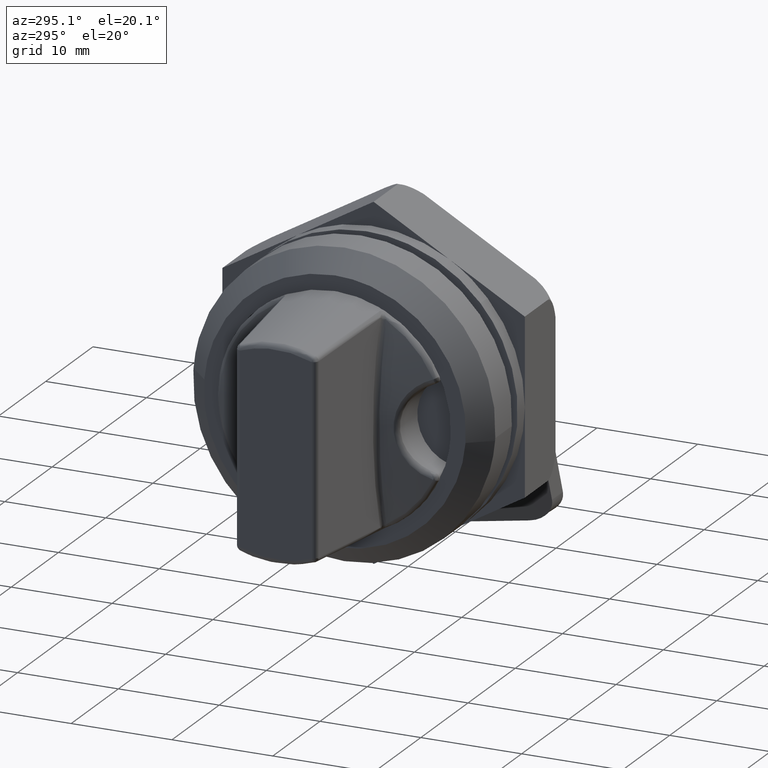
[diagram: clean part render]
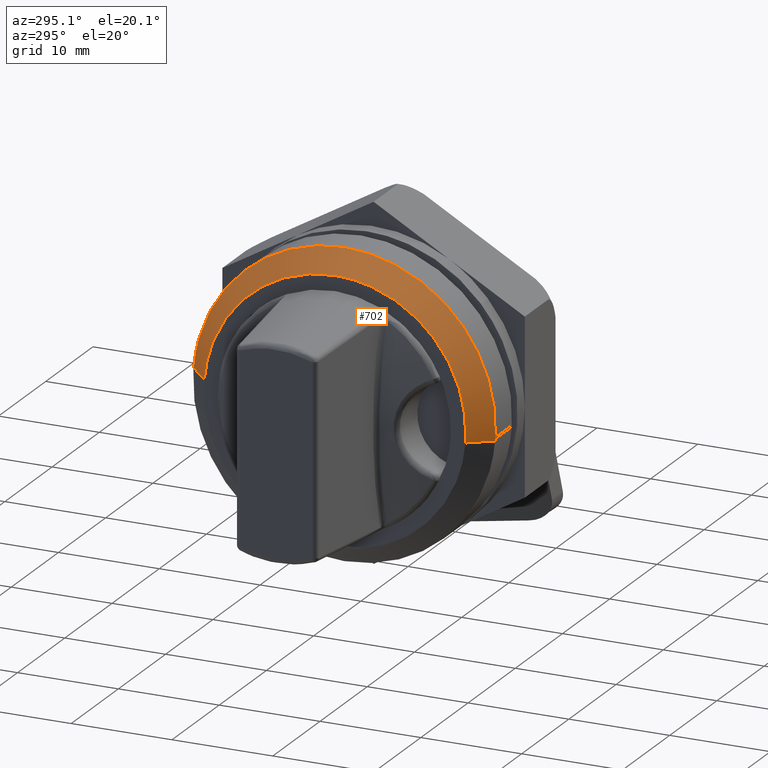
[diagram: same view with one face highlighted and labeled with its STEP entity id]
A machine part, auxiliary view. The second image highlights one B-rep face of the part: STEP entity #702.
In plain terms, the highlighted face is a freeform B-spline surface patch.
Its self-contained STEP definition (entity closure, byte-faithful):
#549=CARTESIAN_POINT('',(-3.499999999996935,14.953760005995850,1.176886435947781));
#550=VERTEX_POINT('',#549);
#564=CARTESIAN_POINT('',(-3.500000000000000,0.0,15.0));
#565=VERTEX_POINT('',#564);
#566=CARTESIAN_POINT('',(-3.500000000000000,0.0,15.0));
#567=CARTESIAN_POINT('',(-3.499999999998466,13.865857374845916,15.000000000000076));
#568=CARTESIAN_POINT('',(-3.499999999996935,14.953760005995850,1.176886435947781));
#576=(BOUNDED_CURVE()B_SPLINE_CURVE(2,(#566,#567,#568),.UNSPECIFIED.,.F.,.U.)B_SPLINE_CURVE_WITH_KNOTS((3,3),(0.0,0.236331300632424),.UNSPECIFIED.)CURVE()GEOMETRIC_REPRESENTATION_ITEM()RATIONAL_B_SPLINE_CURVE((1.0,0.723120658605599,0.969723356171099))REPRESENTATION_ITEM(''));
#577=EDGE_CURVE('',#565,#550,#576,.T.);
#579=CARTESIAN_POINT('',(-3.500000000000000,-14.972022608173891,-0.915717762317002));
#580=VERTEX_POINT('',#579);
#581=CARTESIAN_POINT('',(-3.500000000000000,-14.972022608173891,-0.915717762317002));
#582=CARTESIAN_POINT('',(-3.500000000000000,-14.999999999996483,-0.458286269642817));
#583=CARTESIAN_POINT('',(-3.500000000000000,-14.999999999996540,2.135226E-013));
#584=CARTESIAN_POINT('',(-3.500000000000000,-14.999999999998328,15.000000000000098));
#585=CARTESIAN_POINT('',(-3.500000000000000,0.0,15.0));
#593=(BOUNDED_CURVE()B_SPLINE_CURVE(2,(#581,#582,#583,#584,#585),.UNSPECIFIED.,.F.,.U.)B_SPLINE_CURVE_WITH_KNOTS((3,2,3),(0.739333081299387,0.750000000000000,1.0),.UNSPECIFIED.)CURVE()GEOMETRIC_REPRESENTATION_ITEM()RATIONAL_B_SPLINE_CURVE((0.976072296836046,0.987502927387824,1.0,0.707106781186547,1.0))REPRESENTATION_ITEM(''));
#594=EDGE_CURVE('',#580,#565,#593,.T.);
#621=CARTESIAN_POINT('',(-5.550000000000001,12.910079471844000,1.016045289675600));
#622=CARTESIAN_POINT('',(-5.550000000000002,11.894034182168403,13.926124761519603));
#623=CARTESIAN_POINT('',(-5.550000000000001,-1.016045289675600,12.910079471844000));
#624=CARTESIAN_POINT('',(-5.550000000000002,-13.926124761519603,11.894034182168403));
#625=CARTESIAN_POINT('',(-5.550000000000001,-12.910079471844000,-1.016045289675600));
#626=CARTESIAN_POINT('',(-3.448750000000000,15.004852019350739,1.180907464573735));
#627=CARTESIAN_POINT('',(-3.448750000000000,13.823944554777002,16.185759483924471));
#628=CARTESIAN_POINT('',(-3.448750000000000,-1.180907464573735,15.004852019350739));
#629=CARTESIAN_POINT('',(-3.448750000000000,-16.185759483924471,13.823944554777002));
#630=CARTESIAN_POINT('',(-3.448750000000000,-15.004852019350739,-1.180907464573735));
#638=(BOUNDED_SURFACE()B_SPLINE_SURFACE(2,1,((#621,#626),(#622,#627),(#623,#628),(#624,#629),(#625,#630)),.UNSPECIFIED.,.F.,.F.,.U.)B_SPLINE_SURFACE_WITH_KNOTS((3,2,3),(2,2),(0.0,24.937727522672180,49.875455045344367),(0.0,2.971616247936467),.UNSPECIFIED.)GEOMETRIC_REPRESENTATION_ITEM()RATIONAL_B_SPLINE_SURFACE(((1.0,1.0),(0.707106781186548,0.707106781186548),(1.0,1.0),(0.707106781186548,0.707106781186548),(1.0,1.0)))REPRESENTATION_ITEM('')SURFACE());
#639=ORIENTED_EDGE('',*,*,#577,.T.);
#640=CARTESIAN_POINT('',(-5.499999999992678,12.959925338533660,1.019968244518019));
#641=VERTEX_POINT('',#640);
#642=CARTESIAN_POINT('',(-5.499999999992678,12.959925338533660,1.019968244518019));
#643=CARTESIAN_POINT('',(-3.499999999996935,14.953760005995850,1.176886435947781));
#644=QUASI_UNIFORM_CURVE('',1,(#642,#643),.UNSPECIFIED.,.F.,.U.);
#645=EDGE_CURVE('',#641,#550,#644,.T.);
#646=ORIENTED_EDGE('',*,*,#645,.F.);
#647=CARTESIAN_POINT('',(-5.500000000000000,0.0,13.000000000000121));
#648=VERTEX_POINT('',#647);
#649=CARTESIAN_POINT('',(-5.500000000000000,0.0,13.000000000000121));
#650=CARTESIAN_POINT('',(-5.499999999996340,12.017076391508841,13.000000000000407));
#651=CARTESIAN_POINT('',(-5.499999999992678,12.959925338533656,1.019968244518019));
#659=(BOUNDED_CURVE()B_SPLINE_CURVE(2,(#649,#650,#651),.UNSPECIFIED.,.F.,.U.)B_SPLINE_CURVE_WITH_KNOTS((3,3),(0.0,0.236331300632033),.UNSPECIFIED.)CURVE()GEOMETRIC_REPRESENTATION_ITEM()RATIONAL_B_SPLINE_CURVE((1.0,0.723120658606056,0.969723356170285))REPRESENTATION_ITEM(''));
#660=EDGE_CURVE('',#648,#641,#659,.T.);
#661=ORIENTED_EDGE('',*,*,#660,.F.);
#662=CARTESIAN_POINT('',(-5.499999999992679,-12.959925338533660,-1.019968244518019));
#663=VERTEX_POINT('',#662);
#664=CARTESIAN_POINT('',(-5.499999999992680,-12.959925338533658,-1.019968244518019));
#665=CARTESIAN_POINT('',(-5.499999999992811,-13.000000000007228,-0.510771391128125));
#666=CARTESIAN_POINT('',(-5.499999999992956,-13.000000000007081,-5.460901E-013));
#667=CARTESIAN_POINT('',(-5.499999999996616,-13.000000000003462,12.999999999999858));
#668=CARTESIAN_POINT('',(-5.500000000000000,0.0,13.000000000000121));
#676=(BOUNDED_CURVE()B_SPLINE_CURVE(2,(#664,#665,#666,#667,#668),.UNSPECIFIED.,.F.,.U.)B_SPLINE_CURVE_WITH_KNOTS((3,2,3),(0.736331300632033,0.750000000000000,1.0),.UNSPECIFIED.)CURVE()GEOMETRIC_REPRESENTATION_ITEM()RATIONAL_B_SPLINE_CURVE((0.969723356170284,0.983986122580491,1.0,0.707106781186548,1.0))REPRESENTATION_ITEM(''));
#677=EDGE_CURVE('',#663,#648,#676,.T.);
#678=ORIENTED_EDGE('',*,*,#677,.F.);
#679=CARTESIAN_POINT('',(-3.499999999996935,-14.953760005995850,-1.176886435947782));
#680=VERTEX_POINT('',#679);
#681=CARTESIAN_POINT('',(-5.499999999992679,-12.959925338533660,-1.019968244518019));
#682=CARTESIAN_POINT('',(-3.499999999996935,-14.953760005995850,-1.176886435947782));
#683=QUASI_UNIFORM_CURVE('',1,(#681,#682),.UNSPECIFIED.,.F.,.U.);
#684=EDGE_CURVE('',#663,#680,#683,.T.);
#685=ORIENTED_EDGE('',*,*,#684,.T.);
#686=CARTESIAN_POINT('',(-3.499999999996935,-14.953760005995841,-1.176886435947782));
#687=CARTESIAN_POINT('',(-3.499999999998468,-14.964030944383000,-1.046381789940326));
#688=CARTESIAN_POINT('',(-3.500000000000000,-14.972022608173891,-0.915717762317002));
#696=(BOUNDED_CURVE()B_SPLINE_CURVE(2,(#686,#687,#688),.UNSPECIFIED.,.F.,.U.)B_SPLINE_CURVE_WITH_KNOTS((3,3),(0.736331300632424,0.739333081299387),.UNSPECIFIED.)CURVE()GEOMETRIC_REPRESENTATION_ITEM()RATIONAL_B_SPLINE_CURVE((0.969723356171099,0.972855599796858,0.976072296836046))REPRESENTATION_ITEM(''));
#697=EDGE_CURVE('',#680,#580,#696,.T.);
#698=ORIENTED_EDGE('',*,*,#697,.T.);
#699=ORIENTED_EDGE('',*,*,#594,.T.);
#700=EDGE_LOOP('',(#639,#646,#661,#678,#685,#698,#699));
#701=FACE_OUTER_BOUND('',#700,.T.);
#702=ADVANCED_FACE('',(#701),#638,.T.);